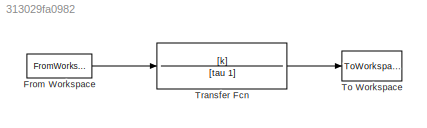
MODEL slx_313029fa0982
KIND model
CONFIG AbsTol = auto
CONFIG EnableMultiTasking = on
CONFIG FixedStep = auto
CONFIG MaxStep = auto
CONFIG MinStep = auto
CONFIG RelTol = 1e-3
CONFIG SampleTimeConstraint = Unconstrained
CONFIG Solver = ode45
CONFIG SolverName = ode45
CONFIG StartTime = 0.0
CONFIG StopTime = 30.0
BLOCK [FromWorkspace] From Workspace
  VariableName = uin
  ZeroCross = on
BLOCK [ToWorkspace] To Workspace
  FixptAsFi = on
  MaxDataPoints = inf
  Ports = [1]
  SampleTime = -1
  Save2DSignal = 3-D array (concatenate along third dimension)
  VariableName = output
BLOCK [TransferFcn] Transfer Fcn
  Denominator = [tau 1]
  Numerator = [k]
LINE From Workspace:1 -> Transfer Fcn:1
LINE Transfer Fcn:1 -> To Workspace:1
